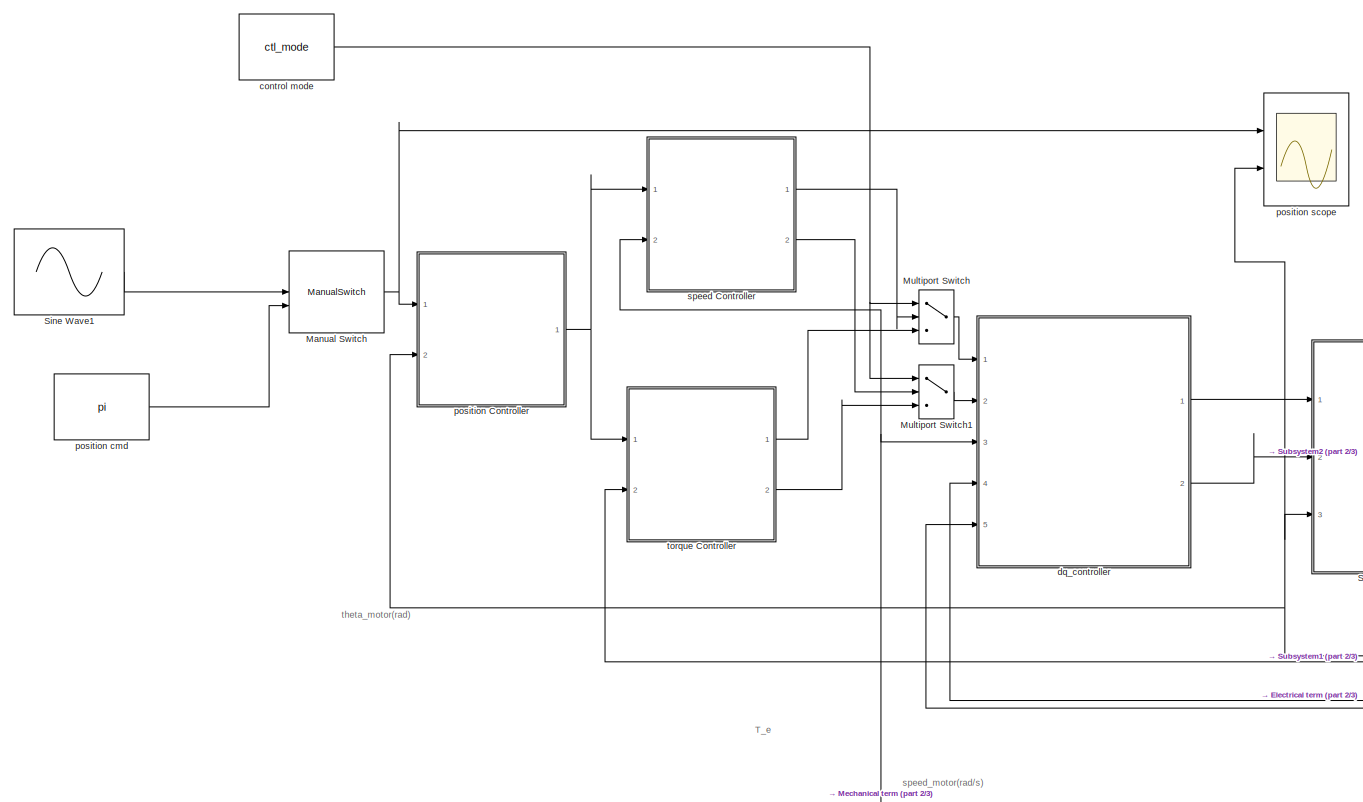
[diagram: root canvas - part 1/3, left side, full height]
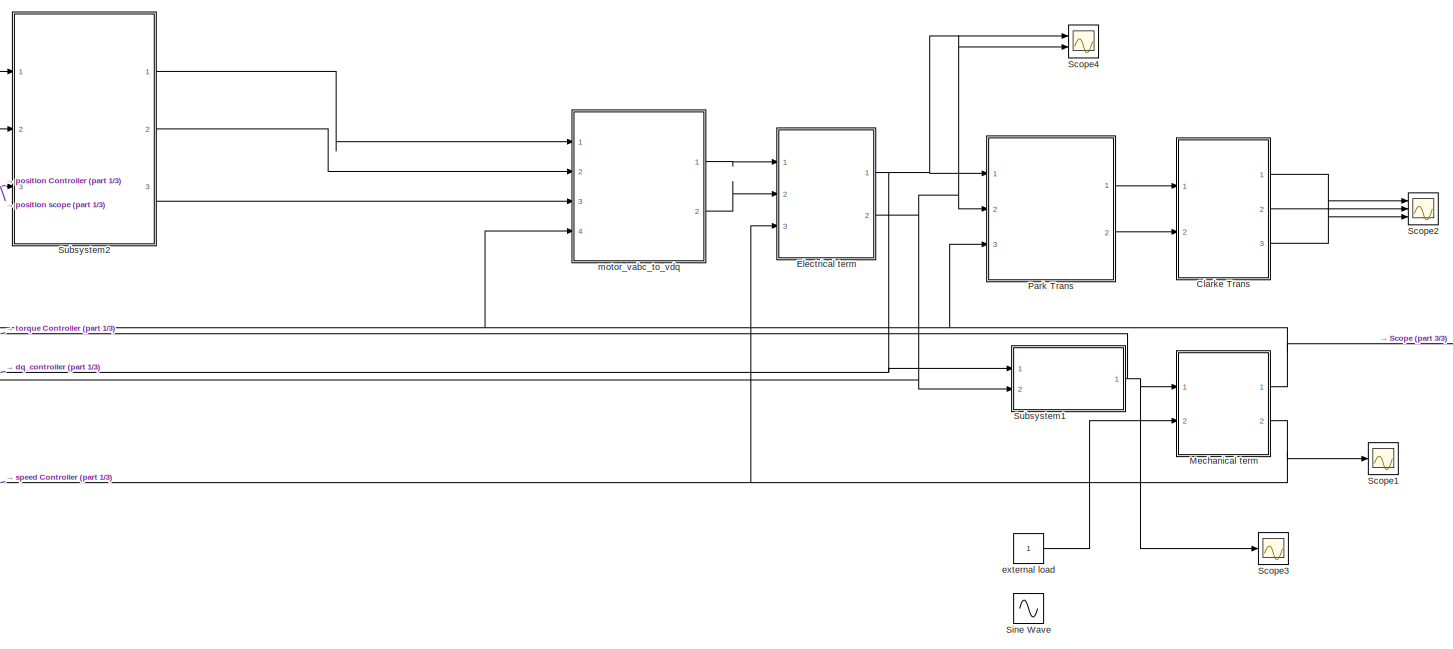
[diagram: root canvas - part 2/3, bottom right region]
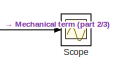
[diagram: root canvas - part 3/3, bottom right region]
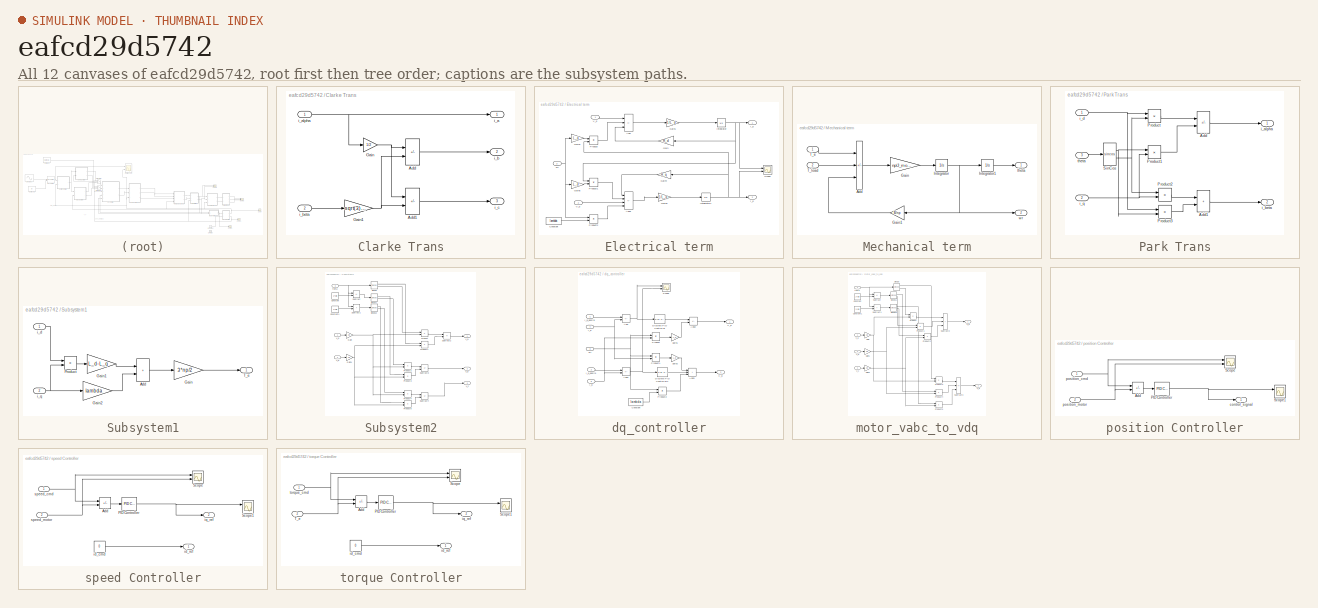
[diagram: thumbnail index - all 12 canvases of the model, root first then tree order]
MODEL slx_eafcd29d5742
KIND model
CONFIG AbsTol = auto
CONFIG EnableMultiTasking = off
CONFIG FixedStep = auto
CONFIG MaxStep = auto
CONFIG MinStep = auto
CONFIG RelTol = 1e-3
CONFIG SampleTimeConstraint = Unconstrained
CONFIG SolverName = VariableStepAuto
CONFIG StartTime = 0.0
CONFIG StopTime = 10
BLOCK [SubSystem] Clarke Trans
  Ports = [2, 3]
  RequestExecContextInheritance = off
BLOCK [Sum] Clarke Trans/Add
  IconShape = rectangular
  Inputs = -+
  Ports = [2, 1]
BLOCK [Sum] Clarke Trans/Add1
  IconShape = rectangular
  Inputs = --
  Ports = [2, 1]
BLOCK [Gain] Clarke Trans/Gain
  Gain = 1/2
BLOCK [Gain] Clarke Trans/Gain1
  Gain = sqrt(3)/2
BLOCK [Outport] Clarke Trans/i_a
BLOCK [Inport] Clarke Trans/i_alpha
BLOCK [Outport] Clarke Trans/i_b
  Port = 2
BLOCK [Inport] Clarke Trans/i_beta
  Port = 2
BLOCK [Outport] Clarke Trans/i_c
  Port = 3
BLOCK [SubSystem] Electrical term
  Ports = [3, 2]
  RequestExecContextInheritance = off
BLOCK [Sum] Electrical term/Add
  IconShape = rectangular
  Inputs = ++-
  Ports = [3, 1]
BLOCK [Sum] Electrical term/Add1
  IconShape = rectangular
  Inputs = --+-
  Ports = [4, 1]
BLOCK [Constant] Electrical term/Constant
  Value = lambda
BLOCK [Gain] Electrical term/Gain
  Gain = R_d
  NameLocation = top
BLOCK [Gain] Electrical term/Gain1
  Gain = 1/L_d
BLOCK [Gain] Electrical term/Gain2
  Gain = L_q
BLOCK [Gain] Electrical term/Gain3
  Gain = 1/L_q
BLOCK [Gain] Electrical term/Gain4
  Gain = R_q
  NameLocation = top
BLOCK [Gain] Electrical term/Gain5
  Gain = L_d
BLOCK [Integrator] Electrical term/Integrator
  Ports = [1, 1]
BLOCK [Integrator] Electrical term/Integrator1
  Ports = [1, 1]
BLOCK [Product] Electrical term/Product
  Ports = [2, 1]
BLOCK [Product] Electrical term/Product1
  Ports = [2, 1]
BLOCK [Product] Electrical term/Product2
  Ports = [2, 1]
BLOCK [Scope] Electrical term/Scope
  Floating = off
  NumInputPorts = 2
  Ports = [2]
  ScopeSpecificationString = Simulink.scopes.TimeScopeBlockCfg('CurrentConfiguration', extmgr.ConfigurationSet(extmgr.Configuration('Core','General UI',true),extmgr.Configuration('Core','Source UI',true),extmgr.Configuration('Sources','WiredSimulink',true,'DataLoggingVariableName','ScopeData2'),extmgr.Configuration('Visuals','Time Domain',true,'SerializedDisplays',{struct('MinYLimReal','-12.17804','MaxYLimReal','109.60239','Y...<+2005ch>
BLOCK [Inport] Electrical term/V_d
BLOCK [Inport] Electrical term/V_q
  Port = 2
BLOCK [Outport] Electrical term/i_d
BLOCK [Outport] Electrical term/i_q
  Port = 2
BLOCK [Inport] Electrical term/wr
  Port = 3
BLOCK [ManualSwitch] Manual Switch
BLOCK [SubSystem] Mechanical term
  Ports = [2, 2]
  RequestExecContextInheritance = off
BLOCK [Sum] Mechanical term/Add
  IconShape = rectangular
  Inputs = +--
  Ports = [3, 1]
BLOCK [Gain] Mechanical term/Gain
  Gain = np/J_motor
BLOCK [Gain] Mechanical term/Gain1
  Gain = B/np
  NameLocation = top
BLOCK [Integrator] Mechanical term/Integrator
  Ports = [1, 1]
BLOCK [Integrator] Mechanical term/Integrator1
  Ports = [1, 1]
BLOCK [Inport] Mechanical term/T_e
BLOCK [Inport] Mechanical term/T_load
  Port = 2
BLOCK [Outport] Mechanical term/theta
BLOCK [Outport] Mechanical term/wr
  Port = 2
BLOCK [MultiPortSwitch] Multiport Switch
  InputSameDT = off
  Inputs = 2
  Ports = [3, 1]
  SaturateOnIntegerOverflow = off
BLOCK [MultiPortSwitch] Multiport Switch1
  InputSameDT = off
  Inputs = 2
  Ports = [3, 1]
  SaturateOnIntegerOverflow = off
BLOCK [SubSystem] Park Trans
  Ports = [3, 2]
  RequestExecContextInheritance = off
BLOCK [Sum] Park Trans/Add
  IconShape = rectangular
  Inputs = +-
  Ports = [2, 1]
BLOCK [Sum] Park Trans/Add1
  IconShape = rectangular
  Ports = [2, 1]
BLOCK [Product] Park Trans/Product
  Ports = [2, 1]
BLOCK [Product] Park Trans/Product1
  Ports = [2, 1]
BLOCK [Product] Park Trans/Product2
  Ports = [2, 1]
BLOCK [Product] Park Trans/Product3
  Ports = [2, 1]
BLOCK [Trigonometry] Park Trans/SinCos
  Operator = sincos
  Ports = [1, 2]
BLOCK [Outport] Park Trans/i_alpha
BLOCK [Outport] Park Trans/i_beta
  Port = 2
BLOCK [Inport] Park Trans/i_d
BLOCK [Inport] Park Trans/i_q
  Port = 2
BLOCK [Inport] Park Trans/theta
  Port = 3
BLOCK [Scope] Scope
  Floating = off
  NumInputPorts = 1
  Ports = [1]
  ScopeSpecificationString = Simulink.scopes.TimeScopeBlockCfg('CurrentConfiguration', extmgr.ConfigurationSet(extmgr.Configuration('Core','General UI',true),extmgr.Configuration('Core','Source UI',true),extmgr.Configuration('Sources','WiredSimulink',true),extmgr.Configuration('Visuals','Time Domain',true,'SerializedDisplays',{struct('MinYLimReal','-0.41388','MaxYLimReal','3.72491','YLabelReal','','MinYLimMag','0.00000','MaxY...<+1362ch>
BLOCK [Scope] Scope1
  Floating = off
  NumInputPorts = 1
  Ports = [1]
  ScopeSpecificationString = Simulink.scopes.TimeScopeBlockCfg('CurrentConfiguration', extmgr.ConfigurationSet(extmgr.Configuration('Core','General UI',true),extmgr.Configuration('Core','Source UI',true),extmgr.Configuration('Sources','WiredSimulink',true,'DataLoggingVariableName','ScopeData1'),extmgr.Configuration('Visuals','Time Domain',true,'SerializedDisplays',{struct('MinYLimReal','-94.14572','MaxYLimReal','113.03638','Y...<+1458ch>
BLOCK [Scope] Scope2
  Floating = off
  NumInputPorts = 3
  Ports = [3]
  ScopeSpecificationString = Simulink.scopes.TimeScopeBlockCfg('CurrentConfiguration', extmgr.ConfigurationSet(extmgr.Configuration('Core','General UI',true),extmgr.Configuration('Core','Source UI',true),extmgr.Configuration('Sources','WiredSimulink',true,'DataLoggingVariableName','ScopeData3'),extmgr.Configuration('Visuals','Time Domain',true,'SerializedDisplays',{struct('MinYLimReal','-120.29766','MaxYLimReal','116.97913','...<+1515ch>
BLOCK [Scope] Scope3
  Floating = off
  NumInputPorts = 1
  Ports = [1]
  ScopeSpecificationString = Simulink.scopes.TimeScopeBlockCfg('CurrentConfiguration', extmgr.ConfigurationSet(extmgr.Configuration('Core','General UI',true),extmgr.Configuration('Core','Source UI',true),extmgr.Configuration('Sources','WiredSimulink',true,'DataLoggingVariableName','ScopeData4'),extmgr.Configuration('Visuals','Time Domain',true,'SerializedDisplays',{struct('MinYLimReal','-29.88735','MaxYLimReal','34.91295','YL...<+1429ch>
BLOCK [Scope] Scope4
  Floating = off
  NumInputPorts = 2
  Ports = [2]
  ScopeSpecificationString = Simulink.scopes.TimeScopeBlockCfg('CurrentConfiguration', extmgr.ConfigurationSet(extmgr.Configuration('Core','General UI',true),extmgr.Configuration('Core','Source UI',true),extmgr.Configuration('Sources','WiredSimulink',true,'DataLoggingVariableName','ScopeData5'),extmgr.Configuration('Visuals','Time Domain',true,'SerializedDisplays',{struct('MinYLimReal','-0.84653','MaxYLimReal','1.13925','YLab...<+2020ch>
BLOCK [Sin] Sine Wave
  Ports = [0, 1]
  SampleTime = 0
BLOCK [Sin] Sine Wave1
  Ports = [0, 1]
  SampleTime = 0
BLOCK [SubSystem] Subsystem1
  Ports = [2, 1]
  RequestExecContextInheritance = off
BLOCK [Sum] Subsystem1/Add
  IconShape = rectangular
  Ports = [2, 1]
BLOCK [Gain] Subsystem1/Gain
  Gain = 3*np/2
BLOCK [Gain] Subsystem1/Gain1
  Gain = L_d-L_q
BLOCK [Gain] Subsystem1/Gain2
  Gain = lambda
BLOCK [Product] Subsystem1/Product
  Ports = [2, 1]
BLOCK [Outport] Subsystem1/T_e
BLOCK [Inport] Subsystem1/i_d
BLOCK [Inport] Subsystem1/i_q
  Port = 2
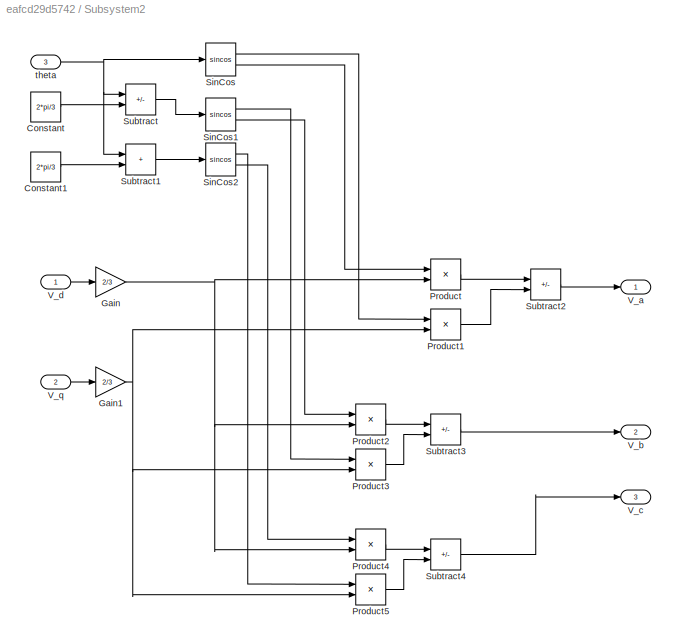
BLOCK [SubSystem] Subsystem2
  Ports = [3, 3]
  RequestExecContextInheritance = off
BLOCK [Constant] Subsystem2/Constant
  Value = 2*pi/3
BLOCK [Constant] Subsystem2/Constant1
  Value = 2*pi/3
BLOCK [Gain] Subsystem2/Gain
  Gain = 2/3
BLOCK [Gain] Subsystem2/Gain1
  Gain = 2/3
BLOCK [Product] Subsystem2/Product
  Ports = [2, 1]
BLOCK [Product] Subsystem2/Product1
  Ports = [2, 1]
BLOCK [Product] Subsystem2/Product2
  Ports = [2, 1]
BLOCK [Product] Subsystem2/Product3
  Ports = [2, 1]
BLOCK [Product] Subsystem2/Product4
  Ports = [2, 1]
BLOCK [Product] Subsystem2/Product5
  Ports = [2, 1]
BLOCK [Trigonometry] Subsystem2/SinCos
  Operator = sincos
  Ports = [1, 2]
BLOCK [Trigonometry] Subsystem2/SinCos1
  Operator = sincos
  Ports = [1, 2]
BLOCK [Trigonometry] Subsystem2/SinCos2
  Operator = sincos
  Ports = [1, 2]
BLOCK [Sum] Subsystem2/Subtract
  IconShape = rectangular
  Inputs = +-
  Ports = [2, 1]
BLOCK [Sum] Subsystem2/Subtract1
  IconShape = rectangular
  Ports = [2, 1]
BLOCK [Sum] Subsystem2/Subtract2
  IconShape = rectangular
  Inputs = +-
  Ports = [2, 1]
BLOCK [Sum] Subsystem2/Subtract3
  IconShape = rectangular
  Inputs = +-
  Ports = [2, 1]
BLOCK [Sum] Subsystem2/Subtract4
  IconShape = rectangular
  Inputs = +-
  Ports = [2, 1]
BLOCK [Outport] Subsystem2/V_a
BLOCK [Outport] Subsystem2/V_b
  Port = 2
BLOCK [Outport] Subsystem2/V_c
  Port = 3
BLOCK [Inport] Subsystem2/V_d
BLOCK [Inport] Subsystem2/V_q
  Port = 2
BLOCK [Inport] Subsystem2/theta
  Port = 3
BLOCK [Constant] control mode
  Value = ctl_mode
BLOCK [SubSystem] dq_controller
  Ports = [5, 2]
  RequestExecContextInheritance = off
BLOCK [Sum] dq_controller/Add
  IconShape = rectangular
  Inputs = +-
  Ports = [2, 1]
BLOCK [Sum] dq_controller/Add1
  IconShape = rectangular
  Inputs = +-
  Ports = [2, 1]
BLOCK [Sum] dq_controller/Add2
  IconShape = rectangular
  Inputs = +-
  Ports = [2, 1]
BLOCK [Sum] dq_controller/Add3
  IconShape = rectangular
  Inputs = +++
  Ports = [3, 1]
BLOCK [Constant] dq_controller/Constant
  Value = lambda
BLOCK [Reference] dq_controller/Discrete PID Controller  REF=pid_lib/PID Controller
  Ports = [1, 1]
  SourceBlock = pid_lib/PID Controller
  SourceProductBaseCode = SL
  SourceType = PID 1dof
BLOCK [Reference] dq_controller/Discrete PID Controller1  REF=pid_lib/PID Controller
  Ports = [1, 1]
  SourceBlock = pid_lib/PID Controller
  SourceProductBaseCode = SL
  SourceType = PID 1dof
BLOCK [Inport] dq_controller/I_d
  Port = 4
BLOCK [Inport] dq_controller/I_d_desire
BLOCK [Inport] dq_controller/I_q
  Port = 5
BLOCK [Inport] dq_controller/I_q_desire
  Port = 2
BLOCK [Product] dq_controller/Product
  Ports = [2, 1]
BLOCK [Product] dq_controller/Product1
  Ports = [2, 1]
BLOCK [Product] dq_controller/Product2
  Ports = [2, 1]
BLOCK [Scope] dq_controller/Scope
  Floating = off
  NumInputPorts = 2
  Ports = [2]
  ScopeSpecificationString = Simulink.scopes.TimeScopeBlockCfg('CurrentConfiguration', extmgr.ConfigurationSet(extmgr.Configuration('Core','General UI',true),extmgr.Configuration('Core','Source UI',true),extmgr.Configuration('Sources','WiredSimulink',true,'DataLoggingVariableName','ScopeData6'),extmgr.Configuration('Visuals','Time Domain',true,'SerializedDisplays',{struct('MinYLimReal','-519.90776','MaxYLimReal','294.3833','Y...<+1963ch>
BLOCK [Outport] dq_controller/V_d
BLOCK [Outport] dq_controller/V_q
  Port = 2
BLOCK [Gain] dq_controller/gain1
  Gain = L_q
BLOCK [Gain] dq_controller/gain2
  Gain = L_d
BLOCK [Inport] dq_controller/wr
  Port = 3
BLOCK [Constant] external load
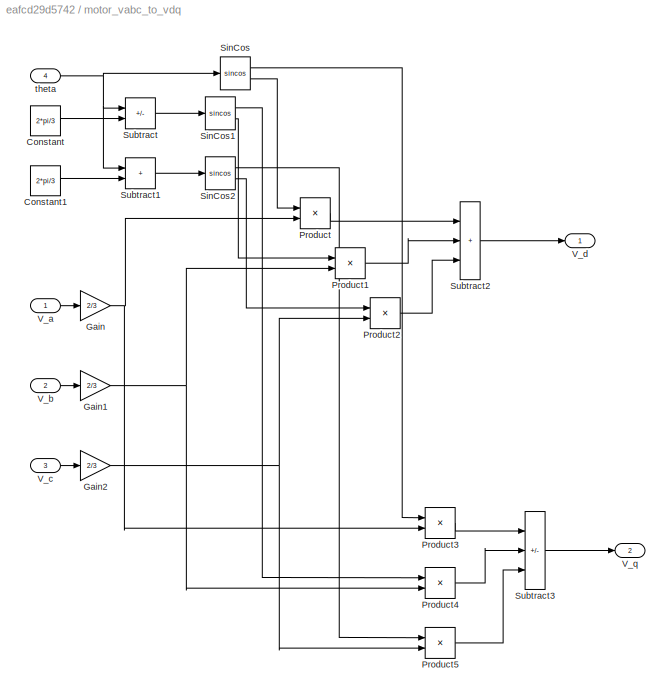
BLOCK [SubSystem] motor_vabc_to_vdq
  Ports = [4, 2]
  RequestExecContextInheritance = off
BLOCK [Constant] motor_vabc_to_vdq/Constant
  Value = 2*pi/3
BLOCK [Constant] motor_vabc_to_vdq/Constant1
  Value = 2*pi/3
BLOCK [Gain] motor_vabc_to_vdq/Gain
  Gain = 2/3
BLOCK [Gain] motor_vabc_to_vdq/Gain1
  Gain = 2/3
BLOCK [Gain] motor_vabc_to_vdq/Gain2
  Gain = 2/3
BLOCK [Product] motor_vabc_to_vdq/Product
  Ports = [2, 1]
BLOCK [Product] motor_vabc_to_vdq/Product1
  Ports = [2, 1]
BLOCK [Product] motor_vabc_to_vdq/Product2
  Ports = [2, 1]
BLOCK [Product] motor_vabc_to_vdq/Product3
  Ports = [2, 1]
BLOCK [Product] motor_vabc_to_vdq/Product4
  Ports = [2, 1]
BLOCK [Product] motor_vabc_to_vdq/Product5
  Ports = [2, 1]
BLOCK [Trigonometry] motor_vabc_to_vdq/SinCos
  Operator = sincos
  Ports = [1, 2]
BLOCK [Trigonometry] motor_vabc_to_vdq/SinCos1
  Operator = sincos
  Ports = [1, 2]
BLOCK [Trigonometry] motor_vabc_to_vdq/SinCos2
  Operator = sincos
  Ports = [1, 2]
BLOCK [Sum] motor_vabc_to_vdq/Subtract
  IconShape = rectangular
  Inputs = +-
  Ports = [2, 1]
BLOCK [Sum] motor_vabc_to_vdq/Subtract1
  IconShape = rectangular
  Ports = [2, 1]
BLOCK [Sum] motor_vabc_to_vdq/Subtract2
  IconShape = rectangular
  Inputs = +++
  Ports = [3, 1]
BLOCK [Sum] motor_vabc_to_vdq/Subtract3
  IconShape = rectangular
  Inputs = ---
  Ports = [3, 1]
BLOCK [Inport] motor_vabc_to_vdq/V_a
BLOCK [Inport] motor_vabc_to_vdq/V_b
  Port = 2
BLOCK [Inport] motor_vabc_to_vdq/V_c
  Port = 3
BLOCK [Outport] motor_vabc_to_vdq/V_d
BLOCK [Outport] motor_vabc_to_vdq/V_q
  Port = 2
BLOCK [Inport] motor_vabc_to_vdq/theta
  Port = 4
BLOCK [SubSystem] position Controller
  Ports = [2, 1]
  RequestExecContextInheritance = off
BLOCK [Sum] position Controller/Add
  IconShape = rectangular
  Inputs = +-
  Ports = [2, 1]
BLOCK [Reference] position Controller/PID Controller  REF=pid_lib/PID Controller
  Ports = [1, 1]
  SourceBlock = pid_lib/PID Controller
  SourceProductBaseCode = SL
  SourceType = PID 1dof
BLOCK [Scope] position Controller/Scope
  Floating = off
  NumInputPorts = 2
  Ports = [2]
  ScopeSpecificationString = Simulink.scopes.TimeScopeBlockCfg('CurrentConfiguration', extmgr.ConfigurationSet(extmgr.Configuration('Core','General UI',true),extmgr.Configuration('Core','Source UI',true),extmgr.Configuration('Sources','WiredSimulink',true,'DataLoggingVariableName','ScopeData1'),extmgr.Configuration('Visuals','Time Domain',true,'SerializedDisplays',{struct('MinYLimReal','-0.63154','MaxYLimReal','5.68386','YLab...<+1386ch>  <repeated x3 — deduplicated; at blocks: Scope>
BLOCK [Scope] position Controller/Scope1
  Floating = off
  NumInputPorts = 2
  Ports = [2]
  ScopeSpecificationString = Simulink.scopes.TimeScopeBlockCfg('CurrentConfiguration', extmgr.ConfigurationSet(extmgr.Configuration('Core','General UI',true),extmgr.Configuration('Core','Source UI',true),extmgr.Configuration('Sources','WiredSimulink',true,'DataLoggingVariableName','ScopeData2'),extmgr.Configuration('Visuals','Time Domain',true,'SerializedDisplays',{struct('MinYLimReal','-0.00178','MaxYLimReal','0.00264','YLab...<+1385ch>  <repeated x3 — deduplicated; at blocks: Scope1>
BLOCK [Outport] position Controller/control_signal
  VectorParamsAs1DForOutWhenUnconnected = off
BLOCK [Inport] position Controller/position_cmd
  SampleTime = 1e-3
BLOCK [Inport] position Controller/position_motor
  Port = 2
  SampleTime = 1e-3
BLOCK [Constant] position cmd
  Value = pi
BLOCK [Scope] position scope
  Floating = off
  NumInputPorts = 2
  Ports = [2]
  ScopeSpecificationString = Simulink.scopes.TimeScopeBlockCfg('CurrentConfiguration', extmgr.ConfigurationSet(extmgr.Configuration('Core','General UI',true),extmgr.Configuration('Core','Source UI',true),extmgr.Configuration('Sources','WiredSimulink',true,'DataLoggingVariableName','ScopeData1'),extmgr.Configuration('Visuals','Time Domain',true,'SerializedDisplays',{struct('MinYLimReal','-0.41388','MaxYLimReal','3.72491','YLab...<+1416ch>
BLOCK [SubSystem] speed Controller
  Ports = [2, 2]
  RequestExecContextInheritance = off
BLOCK [Sum] speed Controller/Add
  IconShape = rectangular
  Inputs = +-
  Ports = [2, 1]
BLOCK [Reference] speed Controller/PID Controller  REF=pid_lib/PID Controller
  Ports = [1, 1]
  SourceBlock = pid_lib/PID Controller
  SourceProductBaseCode = SL
  SourceType = PID 1dof
BLOCK [Scope] speed Controller/Scope
  Floating = off
  NumInputPorts = 2
  Ports = [2]
BLOCK [Scope] speed Controller/Scope1
  Floating = off
  NumInputPorts = 2
  Ports = [2]
BLOCK [Constant] speed Controller/id_cmd
  SampleTime = 1e-3
  Value = 0
BLOCK [Outport] speed Controller/id_ref
  VectorParamsAs1DForOutWhenUnconnected = off
BLOCK [Outport] speed Controller/iq_ref
  Port = 2
  VectorParamsAs1DForOutWhenUnconnected = off
BLOCK [Inport] speed Controller/speed_cmd
  SampleTime = 1e-3
BLOCK [Inport] speed Controller/speed_motor
  Port = 2
  SampleTime = 1e-3
BLOCK [SubSystem] torque Controller
  Ports = [2, 2]
  RequestExecContextInheritance = off
BLOCK [Sum] torque Controller/Add
  IconShape = rectangular
  Inputs = +-
  Ports = [2, 1]
BLOCK [Reference] torque Controller/PID Controller  REF=pid_lib/PID Controller
  Ports = [1, 1]
  SourceBlock = pid_lib/PID Controller
  SourceProductBaseCode = SL
  SourceType = PID 1dof
BLOCK [Scope] torque Controller/Scope
  Floating = off
  NumInputPorts = 2
  Ports = [2]
BLOCK [Scope] torque Controller/Scope1
  Floating = off
  NumInputPorts = 2
  Ports = [2]
BLOCK [Inport] torque Controller/T_e
  Port = 2
  SampleTime = 1e-3
BLOCK [Constant] torque Controller/id_cmd
  SampleTime = 1e-3
  Value = 0
BLOCK [Outport] torque Controller/id_ref
  VectorParamsAs1DForOutWhenUnconnected = off
BLOCK [Outport] torque Controller/iq_ref
  Port = 2
  VectorParamsAs1DForOutWhenUnconnected = off
BLOCK [Inport] torque Controller/torque_cmd
  SampleTime = 1e-3
ANNOTATION (root): T_e
ANNOTATION (root): speed_motor(rad/s)
ANNOTATION (root): theta_motor(rad)
LINE Clarke Trans/Add1:1 -> Clarke Trans/i_c:1
LINE Clarke Trans/Add:1 -> Clarke Trans/i_b:1
NET Clarke Trans/Gain1:1 -> Clarke Trans/Add1:2, Clarke Trans/Add:2
NET Clarke Trans/Gain:1 -> Clarke Trans/Add1:1, Clarke Trans/Add:1
NET Clarke Trans/i_alpha:1 -> Clarke Trans/Gain:1, Clarke Trans/i_a:1
LINE Clarke Trans/i_beta:1 -> Clarke Trans/Gain1:1
LINE Clarke Trans:1 -> Scope2:1
LINE Clarke Trans:2 -> Scope2:2
LINE Clarke Trans:3 -> Scope2:3
LINE Electrical term/Add1:1 -> Electrical term/Gain3:1
LINE Electrical term/Add:1 -> Electrical term/Gain1:1
LINE Electrical term/Constant:1 -> Electrical term/Product2:2
LINE Electrical term/Gain1:1 -> Electrical term/Integrator:1
LINE Electrical term/Gain2:1 -> Electrical term/Product:1
LINE Electrical term/Gain3:1 -> Electrical term/Integrator1:1
LINE Electrical term/Gain4:1 -> Electrical term/Add1:1
LINE Electrical term/Gain5:1 -> Electrical term/Product1:2
LINE Electrical term/Gain:1 -> Electrical term/Add:3
NET Electrical term/Integrator1:1 -> Electrical term/Gain4:1, Electrical term/Product:2, Electrical term/Scope:2, Electrical term/i_q:1
NET Electrical term/Integrator:1 -> Electrical term/Gain:1, Electrical term/Product1:1, Electrical term/Scope:1, Electrical term/i_d:1
LINE Electrical term/Product1:1 -> Electrical term/Add1:2
LINE Electrical term/Product2:1 -> Electrical term/Add1:4
LINE Electrical term/Product:1 -> Electrical term/Add:2
LINE Electrical term/V_d:1 -> Electrical term/Add:1
LINE Electrical term/V_q:1 -> Electrical term/Add1:3
NET Electrical term/wr:1 -> Electrical term/Gain2:1, Electrical term/Gain5:1, Electrical term/Product2:1
NET Electrical term:1 -> Park Trans:1, Scope4:1, Subsystem1:1, dq_controller:4
NET Electrical term:2 -> Park Trans:2, Scope4:2, Subsystem1:2, dq_controller:5
NET Manual Switch:1 -> position Controller:1, position scope:1
LINE Mechanical term/Add:1 -> Mechanical term/Gain:1
LINE Mechanical term/Gain1:1 -> Mechanical term/Add:3
LINE Mechanical term/Gain:1 -> Mechanical term/Integrator:1
LINE Mechanical term/Integrator1:1 -> Mechanical term/theta:1
NET Mechanical term/Integrator:1 -> Mechanical term/Gain1:1, Mechanical term/Integrator1:1, Mechanical term/wr:1
LINE Mechanical term/T_e:1 -> Mechanical term/Add:1
LINE Mechanical term/T_load:1 -> Mechanical term/Add:2
NET Mechanical term:1 -> Park Trans:3, Scope:1, Subsystem2:3, motor_vabc_to_vdq:4, position Controller:2, position scope:2
NET Mechanical term:2 -> Electrical term:3, Scope1:1, dq_controller:3, speed Controller:2
LINE Multiport Switch1:1 -> dq_controller:2
LINE Multiport Switch:1 -> dq_controller:1
LINE Park Trans/Add1:1 -> Park Trans/i_beta:1
LINE Park Trans/Add:1 -> Park Trans/i_alpha:1
LINE Park Trans/Product1:1 -> Park Trans/Add:2
LINE Park Trans/Product2:1 -> Park Trans/Add1:1
LINE Park Trans/Product3:1 -> Park Trans/Add1:2
LINE Park Trans/Product:1 -> Park Trans/Add:1
NET Park Trans/SinCos:1 -> Park Trans/Product1:1, Park Trans/Product3:2
NET Park Trans/SinCos:2 -> Park Trans/Product2:1, Park Trans/Product:2
NET Park Trans/i_d:1 -> Park Trans/Product3:1, Park Trans/Product:1
NET Park Trans/i_q:1 -> Park Trans/Product1:2, Park Trans/Product2:2
LINE Park Trans/theta:1 -> Park Trans/SinCos:1
LINE Park Trans:1 -> Clarke Trans:1
LINE Park Trans:2 -> Clarke Trans:2
LINE Sine Wave1:1 -> Manual Switch:1
LINE Subsystem1/Add:1 -> Subsystem1/Gain:1
LINE Subsystem1/Gain1:1 -> Subsystem1/Add:1
LINE Subsystem1/Gain2:1 -> Subsystem1/Add:2
LINE Subsystem1/Gain:1 -> Subsystem1/T_e:1
LINE Subsystem1/Product:1 -> Subsystem1/Gain1:1
LINE Subsystem1/i_d:1 -> Subsystem1/Product:1
NET Subsystem1/i_q:1 -> Subsystem1/Gain2:1, Subsystem1/Product:2
NET Subsystem1:1 -> Mechanical term:1, Scope3:1, torque Controller:2
LINE Subsystem2/Constant1:1 -> Subsystem2/Subtract1:2
LINE Subsystem2/Constant:1 -> Subsystem2/Subtract:2
NET Subsystem2/Gain1:1 -> Subsystem2/Product1:2, Subsystem2/Product3:2, Subsystem2/Product5:2
NET Subsystem2/Gain:1 -> Subsystem2/Product2:2, Subsystem2/Product4:2, Subsystem2/Product:2
LINE Subsystem2/Product1:1 -> Subsystem2/Subtract2:2
LINE Subsystem2/Product2:1 -> Subsystem2/Subtract3:1
LINE Subsystem2/Product3:1 -> Subsystem2/Subtract3:2
LINE Subsystem2/Product4:1 -> Subsystem2/Subtract4:1
LINE Subsystem2/Product5:1 -> Subsystem2/Subtract4:2
LINE Subsystem2/Product:1 -> Subsystem2/Subtract2:1
LINE Subsystem2/SinCos1:1 -> Subsystem2/Product3:1
LINE Subsystem2/SinCos1:2 -> Subsystem2/Product2:1
LINE Subsystem2/SinCos2:1 -> Subsystem2/Product5:1
LINE Subsystem2/SinCos2:2 -> Subsystem2/Product4:1
LINE Subsystem2/SinCos:1 -> Subsystem2/Product1:1
LINE Subsystem2/SinCos:2 -> Subsystem2/Product:1
LINE Subsystem2/Subtract1:1 -> Subsystem2/SinCos2:1
LINE Subsystem2/Subtract2:1 -> Subsystem2/V_a:1
LINE Subsystem2/Subtract3:1 -> Subsystem2/V_b:1
LINE Subsystem2/Subtract4:1 -> Subsystem2/V_c:1
LINE Subsystem2/Subtract:1 -> Subsystem2/SinCos1:1
LINE Subsystem2/V_d:1 -> Subsystem2/Gain:1
LINE Subsystem2/V_q:1 -> Subsystem2/Gain1:1
NET Subsystem2/theta:1 -> Subsystem2/SinCos:1, Subsystem2/Subtract1:1, Subsystem2/Subtract:1
LINE Subsystem2:1 -> motor_vabc_to_vdq:1
LINE Subsystem2:2 -> motor_vabc_to_vdq:2
LINE Subsystem2:3 -> motor_vabc_to_vdq:3
NET control mode:1 -> Multiport Switch1:1, Multiport Switch:1
NET dq_controller/Add1:1 -> dq_controller/Discrete PID Controller1:1, dq_controller/Scope:2
LINE dq_controller/Add2:1 -> dq_controller/V_d:1
LINE dq_controller/Add3:1 -> dq_controller/V_q:1
NET dq_controller/Add:1 -> dq_controller/Discrete PID Controller:1, dq_controller/Scope:1
LINE dq_controller/Constant:1 -> dq_controller/Product2:2
LINE dq_controller/Discrete PID Controller1:1 -> dq_controller/Add3:2
LINE dq_controller/Discrete PID Controller:1 -> dq_controller/Add2:1
NET dq_controller/I_d:1 -> dq_controller/Add:2, dq_controller/Product1:2
LINE dq_controller/I_d_desire:1 -> dq_controller/Add:1
NET dq_controller/I_q:1 -> dq_controller/Add1:2, dq_controller/Product:2
LINE dq_controller/I_q_desire:1 -> dq_controller/Add1:1
LINE dq_controller/Product1:1 -> dq_controller/gain2:1
LINE dq_controller/Product2:1 -> dq_controller/Add3:3
LINE dq_controller/Product:1 -> dq_controller/gain1:1
LINE dq_controller/gain1:1 -> dq_controller/Add2:2
LINE dq_controller/gain2:1 -> dq_controller/Add3:1
NET dq_controller/wr:1 -> dq_controller/Product1:1, dq_controller/Product2:1, dq_controller/Product:1
LINE dq_controller:1 -> Subsystem2:1
LINE dq_controller:2 -> Subsystem2:2
LINE external load:1 -> Mechanical term:2
LINE motor_vabc_to_vdq/Constant1:1 -> motor_vabc_to_vdq/Subtract1:2
LINE motor_vabc_to_vdq/Constant:1 -> motor_vabc_to_vdq/Subtract:2
NET motor_vabc_to_vdq/Gain1:1 -> motor_vabc_to_vdq/Product1:2, motor_vabc_to_vdq/Product4:2
NET motor_vabc_to_vdq/Gain2:1 -> motor_vabc_to_vdq/Product2:2, motor_vabc_to_vdq/Product5:2
NET motor_vabc_to_vdq/Gain:1 -> motor_vabc_to_vdq/Product3:2, motor_vabc_to_vdq/Product:2
LINE motor_vabc_to_vdq/Product1:1 -> motor_vabc_to_vdq/Subtract2:2
LINE motor_vabc_to_vdq/Product2:1 -> motor_vabc_to_vdq/Subtract2:3
LINE motor_vabc_to_vdq/Product3:1 -> motor_vabc_to_vdq/Subtract3:1
LINE motor_vabc_to_vdq/Product4:1 -> motor_vabc_to_vdq/Subtract3:2
LINE motor_vabc_to_vdq/Product5:1 -> motor_vabc_to_vdq/Subtract3:3
LINE motor_vabc_to_vdq/Product:1 -> motor_vabc_to_vdq/Subtract2:1
LINE motor_vabc_to_vdq/SinCos1:1 -> motor_vabc_to_vdq/Product4:1
LINE motor_vabc_to_vdq/SinCos1:2 -> motor_vabc_to_vdq/Product1:1
LINE motor_vabc_to_vdq/SinCos2:1 -> motor_vabc_to_vdq/Product5:1
LINE motor_vabc_to_vdq/SinCos2:2 -> motor_vabc_to_vdq/Product2:1
LINE motor_vabc_to_vdq/SinCos:1 -> motor_vabc_to_vdq/Product3:1
LINE motor_vabc_to_vdq/SinCos:2 -> motor_vabc_to_vdq/Product:1
LINE motor_vabc_to_vdq/Subtract1:1 -> motor_vabc_to_vdq/SinCos2:1
LINE motor_vabc_to_vdq/Subtract2:1 -> motor_vabc_to_vdq/V_d:1
LINE motor_vabc_to_vdq/Subtract3:1 -> motor_vabc_to_vdq/V_q:1
LINE motor_vabc_to_vdq/Subtract:1 -> motor_vabc_to_vdq/SinCos1:1
LINE motor_vabc_to_vdq/V_a:1 -> motor_vabc_to_vdq/Gain:1
LINE motor_vabc_to_vdq/V_b:1 -> motor_vabc_to_vdq/Gain1:1
LINE motor_vabc_to_vdq/V_c:1 -> motor_vabc_to_vdq/Gain2:1
NET motor_vabc_to_vdq/theta:1 -> motor_vabc_to_vdq/SinCos:1, motor_vabc_to_vdq/Subtract1:1, motor_vabc_to_vdq/Subtract:1
LINE motor_vabc_to_vdq:1 -> Electrical term:1
LINE motor_vabc_to_vdq:2 -> Electrical term:2
LINE position Controller/Add:1 -> position Controller/PID Controller:1
NET position Controller/PID Controller:1 -> position Controller/Scope1:1, position Controller/control_signal:1
NET position Controller/position_cmd:1 -> position Controller/Add:1, position Controller/Scope:1
NET position Controller/position_motor:1 -> position Controller/Add:2, position Controller/Scope:2
NET position Controller:1 -> speed Controller:1, torque Controller:1
LINE position cmd:1 -> Manual Switch:2
LINE speed Controller/Add:1 -> speed Controller/PID Controller:1
NET speed Controller/PID Controller:1 -> speed Controller/Scope1:1, speed Controller/iq_ref:1
LINE speed Controller/id_cmd:1 -> speed Controller/id_ref:1
NET speed Controller/speed_cmd:1 -> speed Controller/Add:1, speed Controller/Scope:1
NET speed Controller/speed_motor:1 -> speed Controller/Add:2, speed Controller/Scope:2
LINE speed Controller:1 -> Multiport Switch:2
LINE speed Controller:2 -> Multiport Switch1:2
LINE torque Controller/Add:1 -> torque Controller/PID Controller:1
NET torque Controller/PID Controller:1 -> torque Controller/Scope1:1, torque Controller/iq_ref:1
NET torque Controller/T_e:1 -> torque Controller/Add:2, torque Controller/Scope:2
LINE torque Controller/id_cmd:1 -> torque Controller/id_ref:1
NET torque Controller/torque_cmd:1 -> torque Controller/Add:1, torque Controller/Scope:1
LINE torque Controller:1 -> Multiport Switch:3
LINE torque Controller:2 -> Multiport Switch1:3
note: NET lines group one-source signal fan-out (src -> all destinations, sorted); 1:1 wires keep LINE
